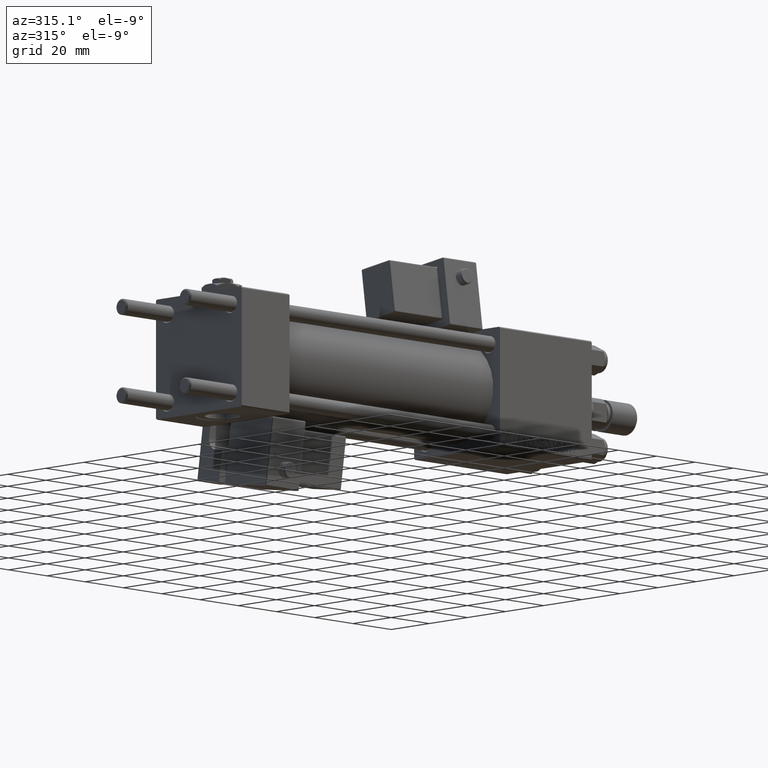
[diagram: clean part render]
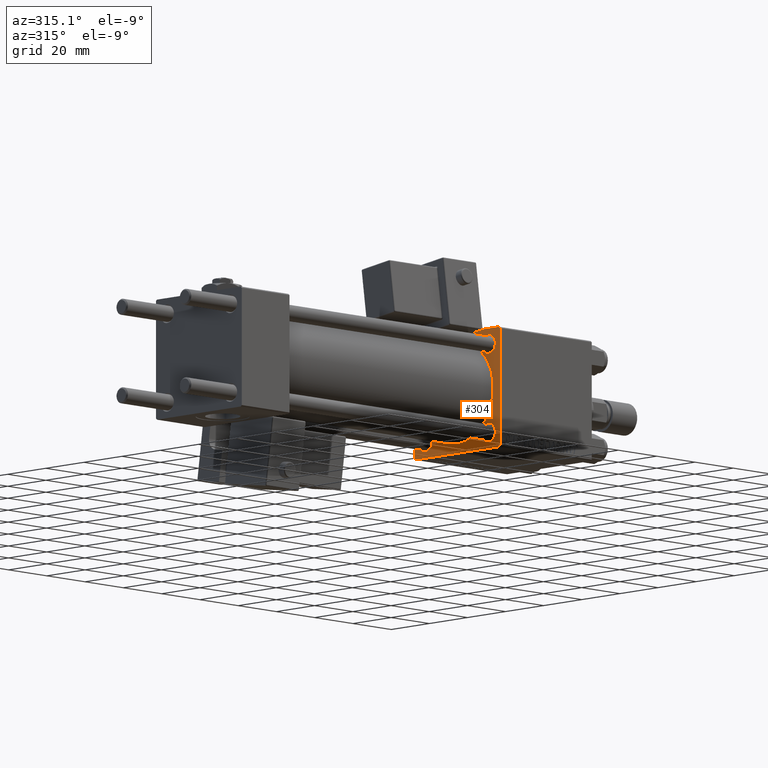
[diagram: same view with one face highlighted and labeled with its STEP entity id]
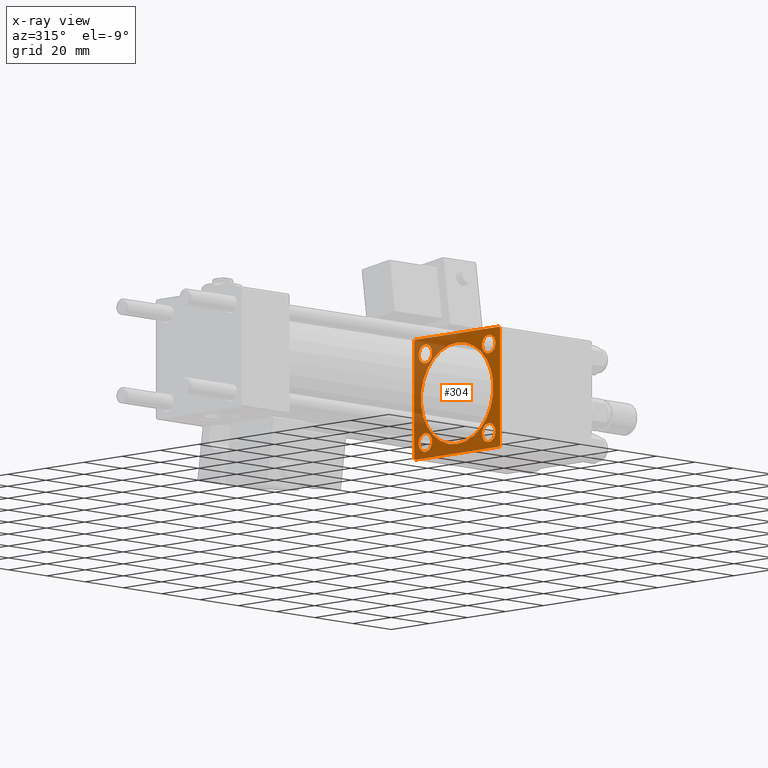
[diagram: x-ray of the same camera — body ghosted, the highlighted face saturated]
A machine part, auxiliary view. The second image highlights one B-rep face of the part: STEP entity #304.
The next image is the same camera in x-ray: the body ghosted, the highlighted face saturated — about 35% of this face is hidden behind the body in this view.
In plain terms, the highlighted planar face has unit normal (-1, 0, 0).
Its self-contained STEP definition (entity closure, byte-faithful):
#23 = EDGE_LOOP ( 'NONE', ( #54300, #17195 ) ) ;
#304 = ADVANCED_FACE ( 'NONE', ( #9348, #4675, #1106, #21980, #38471, #22248 ), #29940, .T. ) ;
#628 = DIRECTION ( 'NONE',  ( 0.000000000000000000, 0.7071067811865474617, -0.7071067811865474617 ) ) ;
#1106 = FACE_BOUND ( 'NONE', #47845, .T. ) ;
#1210 = VERTEX_POINT ( 'NONE', #54087 ) ;
#1512 = DIRECTION ( 'NONE',  ( 0.000000000000000000, -1.000000000000000000, -7.709882115452476934E-17 ) ) ;
#1592 = ORIENTED_EDGE ( 'NONE', *, *, #44372, .T. ) ;
#1678 = EDGE_CURVE ( 'NONE', #33570, #42277, #39129, .T. ) ;
#1818 = DIRECTION ( 'NONE',  ( -0.000000000000000000, 0.7071067811865474617, 0.7071067811865474617 ) ) ;
#1864 = EDGE_CURVE ( 'NONE', #35310, #52578, #53960, .T. ) ;
#2145 = CIRCLE ( 'NONE', #16181, 3.500000000000031086 ) ;
#2566 = ORIENTED_EDGE ( 'NONE', *, *, #30428, .T. ) ;
#2725 = CARTESIAN_POINT ( 'NONE',  ( 135.0000000000000000, 22.00000000000000355, 22.50000000000000355 ) ) ;
#3020 = DIRECTION ( 'NONE',  ( 1.000000000000000000, -0.000000000000000000, 0.000000000000000000 ) ) ;
#3534 = CARTESIAN_POINT ( 'NONE',  ( 135.0000000000000000, -16.59999999999999076, -20.10000000000000853 ) ) ;
#3659 = DIRECTION ( 'NONE',  ( 1.000000000000000000, -0.000000000000000000, 0.000000000000000000 ) ) ;
#4144 = ORIENTED_EDGE ( 'NONE', *, *, #1678, .T. ) ;
#4172 = VERTEX_POINT ( 'NONE', #48647 ) ;
#4200 = CARTESIAN_POINT ( 'NONE',  ( 135.0000000000000000, 22.25000000000000355, 22.25000000000000355 ) ) ;
#4675 = FACE_BOUND ( 'NONE', #12889, .T. ) ;
#4963 = CARTESIAN_POINT ( 'NONE',  ( 135.0000000000000000, -16.59999999999999076, -16.60000000000000853 ) ) ;
#5447 = AXIS2_PLACEMENT_3D ( 'NONE', #28578, #11564, #36840 ) ;
#5625 = EDGE_LOOP ( 'NONE', ( #6223, #2566 ) ) ;
#6018 = EDGE_CURVE ( 'NONE', #42099, #20303, #43069, .T. ) ;
#6223 = ORIENTED_EDGE ( 'NONE', *, *, #6018, .T. ) ;
#6362 = CARTESIAN_POINT ( 'NONE',  ( 135.0000000000000000, -22.49999999999999645, 21.99999999999999289 ) ) ;
#6589 = DIRECTION ( 'NONE',  ( 1.000000000000000000, -0.000000000000000000, 0.000000000000000000 ) ) ;
#6801 = CIRCLE ( 'NONE', #13796, 3.500000000000031086 ) ;
#6857 = CARTESIAN_POINT ( 'NONE',  ( 135.0000000000000000, -22.25000000000013500, -22.24999999999982947 ) ) ;
#7258 = DIRECTION ( 'NONE',  ( 0.000000000000000000, 0.000000000000000000, -1.000000000000000000 ) ) ;
#7299 = VERTEX_POINT ( 'NONE', #31553 ) ;
#8809 = DIRECTION ( 'NONE',  ( -0.000000000000000000, 0.000000000000000000, 1.000000000000000000 ) ) ;
#9169 = CIRCLE ( 'NONE', #53094, 3.500000000000003109 ) ;
#9221 = EDGE_CURVE ( 'NONE', #12637, #54306, #42311, .T. ) ;
#9348 = FACE_BOUND ( 'NONE', #16582, .T. ) ;
#9645 = CARTESIAN_POINT ( 'NONE',  ( 135.0000000000000000, 0.000000000000000000, 0.000000000000000000 ) ) ;
#10139 = CARTESIAN_POINT ( 'NONE',  ( 135.0000000000000000, -16.59999999999999076, 16.60000000000000853 ) ) ;
#10216 = CARTESIAN_POINT ( 'NONE',  ( 135.0000000000000000, 16.59999999999999787, 16.60000000000000497 ) ) ;
#10932 = CARTESIAN_POINT ( 'NONE',  ( 135.0000000000000000, 16.59999999999999787, 16.60000000000000497 ) ) ;
#10979 = LINE ( 'NONE', #6857, #36839 ) ;
#11023 = EDGE_CURVE ( 'NONE', #29853, #45178, #19594, .T. ) ;
#11182 = CARTESIAN_POINT ( 'NONE',  ( 135.0000000000000000, 16.59999999999999787, 20.10000000000003340 ) ) ;
#11255 = VECTOR ( 'NONE', #18603, 1000.000000000000000 ) ;
#11310 = AXIS2_PLACEMENT_3D ( 'NONE', #53161, #49825, #29196 ) ;
#11564 = DIRECTION ( 'NONE',  ( 1.000000000000000000, -0.000000000000000000, 0.000000000000000000 ) ) ;
#11656 = LINE ( 'NONE', #36924, #34843 ) ;
#12637 = VERTEX_POINT ( 'NONE', #28089 ) ;
#12889 = EDGE_LOOP ( 'NONE', ( #13067, #28568 ) ) ;
#12934 = CARTESIAN_POINT ( 'NONE',  ( 135.0000000000000000, 0.000000000000000000, 0.000000000000000000 ) ) ;
#13067 = ORIENTED_EDGE ( 'NONE', *, *, #13089, .T. ) ;
#13089 = EDGE_CURVE ( 'NONE', #16447, #36835, #2145, .T. ) ;
#13755 = DIRECTION ( 'NONE',  ( 1.000000000000000000, -0.000000000000000000, 0.000000000000000000 ) ) ;
#13764 = EDGE_CURVE ( 'NONE', #45178, #29853, #31957, .T. ) ;
#13796 = AXIS2_PLACEMENT_3D ( 'NONE', #10216, #14895, #36039 ) ;
#14281 = EDGE_CURVE ( 'NONE', #40083, #7299, #52088, .T. ) ;
#14895 = DIRECTION ( 'NONE',  ( 1.000000000000000000, -0.000000000000000000, 0.000000000000000000 ) ) ;
#16181 = AXIS2_PLACEMENT_3D ( 'NONE', #10932, #53984, #19448 ) ;
#16447 = VERTEX_POINT ( 'NONE', #11182 ) ;
#16582 = EDGE_LOOP ( 'NONE', ( #47363, #1592 ) ) ;
#17056 = DIRECTION ( 'NONE',  ( -1.000000000000000000, 0.000000000000000000, -0.000000000000000000 ) ) ;
#17195 = ORIENTED_EDGE ( 'NONE', *, *, #11023, .T. ) ;
#17828 = DIRECTION ( 'NONE',  ( 0.000000000000000000, 0.000000000000000000, 1.000000000000000000 ) ) ;
#18105 = EDGE_CURVE ( 'NONE', #26482, #1210, #9169, .T. ) ;
#18603 = DIRECTION ( 'NONE',  ( 0.000000000000000000, 0.000000000000000000, -1.000000000000000000 ) ) ;
#18769 = CARTESIAN_POINT ( 'NONE',  ( 135.0000000000000000, 22.00000000000000355, -22.49999999999999645 ) ) ;
#18985 = CIRCLE ( 'NONE', #32151, 3.500000000000031086 ) ;
#19044 = CARTESIAN_POINT ( 'NONE',  ( 135.0000000000000000, 16.59999999999999787, -13.10000000000000142 ) ) ;
#19448 = DIRECTION ( 'NONE',  ( 0.000000000000000000, 0.000000000000000000, 1.000000000000000000 ) ) ;
#19594 = CIRCLE ( 'NONE', #26581, 3.500000000000003109 ) ;
#19785 = DIRECTION ( 'NONE',  ( 0.000000000000000000, 0.000000000000000000, 1.000000000000000000 ) ) ;
#20190 = CARTESIAN_POINT ( 'NONE',  ( 135.0000000000000000, -21.99999999999995381, -22.50000000000000000 ) ) ;
#20303 = VERTEX_POINT ( 'NONE', #23645 ) ;
#21370 = AXIS2_PLACEMENT_3D ( 'NONE', #12934, #17056, #8809 ) ;
#21980 = FACE_BOUND ( 'NONE', #23, .T. ) ;
#22248 = FACE_OUTER_BOUND ( 'NONE', #52657, .T. ) ;
#22774 = DIRECTION ( 'NONE',  ( 1.000000000000000000, -0.000000000000000000, 0.000000000000000000 ) ) ;
#23064 = LINE ( 'NONE', #35710, #24508 ) ;
#23339 = DIRECTION ( 'NONE',  ( 0.000000000000000000, 0.000000000000000000, 1.000000000000000000 ) ) ;
#23645 = CARTESIAN_POINT ( 'NONE',  ( 135.0000000000000000, 2.326828918379970970E-15, -19.00000000000000000 ) ) ;
#24095 = VECTOR ( 'NONE', #1818, 1000.000000000000114 ) ;
#24508 = VECTOR ( 'NONE', #43125, 1000.000000000000000 ) ;
#24551 = DIRECTION ( 'NONE',  ( -0.000000000000000000, -0.7071067811865474617, -0.7071067811865474617 ) ) ;
#25063 = EDGE_CURVE ( 'NONE', #36835, #16447, #6801, .T. ) ;
#25260 = VECTOR ( 'NONE', #24551, 1000.000000000000114 ) ;
#26428 = ORIENTED_EDGE ( 'NONE', *, *, #14281, .T. ) ;
#26482 = VERTEX_POINT ( 'NONE', #19044 ) ;
#26581 = AXIS2_PLACEMENT_3D ( 'NONE', #41299, #3659, #53151 ) ;
#27873 = CIRCLE ( 'NONE', #30476, 3.500000000000003109 ) ;
#27949 = CARTESIAN_POINT ( 'NONE',  ( 135.0000000000000000, -16.59999999999999076, 13.09999999999997655 ) ) ;
#28089 = CARTESIAN_POINT ( 'NONE',  ( 135.0000000000000000, -16.59999999999999076, 20.10000000000003695 ) ) ;
#28568 = ORIENTED_EDGE ( 'NONE', *, *, #25063, .T. ) ;
#28578 = CARTESIAN_POINT ( 'NONE',  ( 135.0000000000000000, -16.59999999999999076, 16.60000000000000853 ) ) ;
#28806 = CARTESIAN_POINT ( 'NONE',  ( 135.0000000000000000, 16.59999999999999787, -16.60000000000000497 ) ) ;
#29196 = DIRECTION ( 'NONE',  ( 0.000000000000000000, 0.000000000000000000, -1.000000000000000000 ) ) ;
#29768 = EDGE_CURVE ( 'NONE', #42277, #38861, #10979, .T. ) ;
#29853 = VERTEX_POINT ( 'NONE', #3534 ) ;
#29878 = AXIS2_PLACEMENT_3D ( 'NONE', #9645, #30238, #38498 ) ;
#29940 = PLANE ( 'NONE',  #21370 ) ;
#30238 = DIRECTION ( 'NONE',  ( 1.000000000000000000, 0.000000000000000000, 0.000000000000000000 ) ) ;
#30428 = EDGE_CURVE ( 'NONE', #20303, #42099, #47236, .T. ) ;
#30476 = AXIS2_PLACEMENT_3D ( 'NONE', #28806, #6589, #23339 ) ;
#30946 = LINE ( 'NONE', #35903, #11255 ) ;
#31008 = EDGE_CURVE ( 'NONE', #35310, #7299, #23064, .T. ) ;
#31546 = ORIENTED_EDGE ( 'NONE', *, *, #29768, .T. ) ;
#31553 = CARTESIAN_POINT ( 'NONE',  ( 135.0000000000000000, -21.99999999999998224, 22.49999999999999289 ) ) ;
#31623 = CARTESIAN_POINT ( 'NONE',  ( 135.0000000000000000, -16.59999999999999076, -13.10000000000000320 ) ) ;
#31889 = ORIENTED_EDGE ( 'NONE', *, *, #1864, .T. ) ;
#31953 = VECTOR ( 'NONE', #628, 1000.000000000000114 ) ;
#31957 = CIRCLE ( 'NONE', #49544, 3.500000000000003109 ) ;
#32151 = AXIS2_PLACEMENT_3D ( 'NONE', #10139, #22774, #17828 ) ;
#33570 = VERTEX_POINT ( 'NONE', #18769 ) ;
#34347 = DIRECTION ( 'NONE',  ( 0.000000000000000000, 0.000000000000000000, 1.000000000000000000 ) ) ;
#34843 = VECTOR ( 'NONE', #7258, 1000.000000000000000 ) ;
#35310 = VERTEX_POINT ( 'NONE', #2725 ) ;
#35536 = CARTESIAN_POINT ( 'NONE',  ( 135.0000000000000000, -22.49999999999999645, -21.99999999999995026 ) ) ;
#35710 = CARTESIAN_POINT ( 'NONE',  ( 135.0000000000000000, 22.50000000000000355, 22.50000000000000355 ) ) ;
#35903 = CARTESIAN_POINT ( 'NONE',  ( 135.0000000000000000, 22.50000000000000355, 22.50000000000000355 ) ) ;
#36039 = DIRECTION ( 'NONE',  ( 0.000000000000000000, 0.000000000000000000, 1.000000000000000000 ) ) ;
#36811 = CARTESIAN_POINT ( 'NONE',  ( 135.0000000000000000, 16.59999999999999787, -16.60000000000000497 ) ) ;
#36835 = VERTEX_POINT ( 'NONE', #43549 ) ;
#36839 = VECTOR ( 'NONE', #44763, 1000.000000000000000 ) ;
#36840 = DIRECTION ( 'NONE',  ( 0.000000000000000000, 0.000000000000000000, 1.000000000000000000 ) ) ;
#36924 = CARTESIAN_POINT ( 'NONE',  ( 135.0000000000000000, -22.49999999999999645, 22.49999999999999289 ) ) ;
#37455 = CARTESIAN_POINT ( 'NONE',  ( 135.0000000000000000, 22.24999999999999645, -22.24999999999999645 ) ) ;
#38255 = CARTESIAN_POINT ( 'NONE',  ( 135.0000000000000000, 22.50000000000000355, 22.00000000000000355 ) ) ;
#38295 = ORIENTED_EDGE ( 'NONE', *, *, #46161, .F. ) ;
#38471 = FACE_BOUND ( 'NONE', #5625, .T. ) ;
#38498 = DIRECTION ( 'NONE',  ( 0.000000000000000000, 0.000000000000000000, -1.000000000000000000 ) ) ;
#38861 = VERTEX_POINT ( 'NONE', #35536 ) ;
#39129 = LINE ( 'NONE', #47367, #50394 ) ;
#40083 = VERTEX_POINT ( 'NONE', #6362 ) ;
#40263 = CARTESIAN_POINT ( 'NONE',  ( 135.0000000000000000, -22.24999999999999289, 22.24999999999999289 ) ) ;
#40302 = ORIENTED_EDGE ( 'NONE', *, *, #52085, .T. ) ;
#40771 = LINE ( 'NONE', #37455, #25260 ) ;
#41299 = CARTESIAN_POINT ( 'NONE',  ( 135.0000000000000000, -16.59999999999999076, -16.60000000000000853 ) ) ;
#42099 = VERTEX_POINT ( 'NONE', #47124 ) ;
#42277 = VERTEX_POINT ( 'NONE', #20190 ) ;
#42311 = CIRCLE ( 'NONE', #5447, 3.500000000000031086 ) ;
#42713 = ORIENTED_EDGE ( 'NONE', *, *, #52529, .T. ) ;
#43069 = CIRCLE ( 'NONE', #29878, 19.00000000000000000 ) ;
#43125 = DIRECTION ( 'NONE',  ( 0.000000000000000000, -1.000000000000000000, -2.312964634635742957E-16 ) ) ;
#43549 = CARTESIAN_POINT ( 'NONE',  ( 135.0000000000000000, 16.59999999999999787, 13.09999999999997300 ) ) ;
#43775 = ORIENTED_EDGE ( 'NONE', *, *, #18105, .T. ) ;
#43864 = ORIENTED_EDGE ( 'NONE', *, *, #46788, .T. ) ;
#44372 = EDGE_CURVE ( 'NONE', #54306, #12637, #18985, .T. ) ;
#44763 = DIRECTION ( 'NONE',  ( 0.000000000000000000, -0.7071067811865426878, 0.7071067811865524577 ) ) ;
#45178 = VERTEX_POINT ( 'NONE', #31623 ) ;
#46161 = EDGE_CURVE ( 'NONE', #40083, #38861, #11656, .T. ) ;
#46788 = EDGE_CURVE ( 'NONE', #1210, #26482, #27873, .T. ) ;
#47124 = CARTESIAN_POINT ( 'NONE',  ( 135.0000000000000000, 0.000000000000000000, 19.00000000000000000 ) ) ;
#47236 = CIRCLE ( 'NONE', #11310, 19.00000000000000000 ) ;
#47363 = ORIENTED_EDGE ( 'NONE', *, *, #9221, .T. ) ;
#47367 = CARTESIAN_POINT ( 'NONE',  ( 135.0000000000000000, 22.50000000000000355, -22.49999999999999645 ) ) ;
#47845 = EDGE_LOOP ( 'NONE', ( #43775, #43864 ) ) ;
#48647 = CARTESIAN_POINT ( 'NONE',  ( 135.0000000000000000, 22.50000000000000355, -21.99999999999998224 ) ) ;
#49544 = AXIS2_PLACEMENT_3D ( 'NONE', #4963, #13755, #34347 ) ;
#49550 = ORIENTED_EDGE ( 'NONE', *, *, #31008, .F. ) ;
#49825 = DIRECTION ( 'NONE',  ( 1.000000000000000000, 0.000000000000000000, 0.000000000000000000 ) ) ;
#50394 = VECTOR ( 'NONE', #1512, 1000.000000000000000 ) ;
#52085 = EDGE_CURVE ( 'NONE', #52578, #4172, #30946, .T. ) ;
#52088 = LINE ( 'NONE', #40263, #24095 ) ;
#52529 = EDGE_CURVE ( 'NONE', #4172, #33570, #40771, .T. ) ;
#52578 = VERTEX_POINT ( 'NONE', #38255 ) ;
#52657 = EDGE_LOOP ( 'NONE', ( #4144, #31546, #38295, #26428, #49550, #31889, #40302, #42713 ) ) ;
#53094 = AXIS2_PLACEMENT_3D ( 'NONE', #36811, #3020, #19785 ) ;
#53151 = DIRECTION ( 'NONE',  ( 0.000000000000000000, 0.000000000000000000, 1.000000000000000000 ) ) ;
#53161 = CARTESIAN_POINT ( 'NONE',  ( 135.0000000000000000, 0.000000000000000000, 0.000000000000000000 ) ) ;
#53960 = LINE ( 'NONE', #4200, #31953 ) ;
#53984 = DIRECTION ( 'NONE',  ( 1.000000000000000000, -0.000000000000000000, 0.000000000000000000 ) ) ;
#54087 = CARTESIAN_POINT ( 'NONE',  ( 135.0000000000000000, 16.59999999999999787, -20.10000000000000853 ) ) ;
#54300 = ORIENTED_EDGE ( 'NONE', *, *, #13764, .T. ) ;
#54306 = VERTEX_POINT ( 'NONE', #27949 ) ;